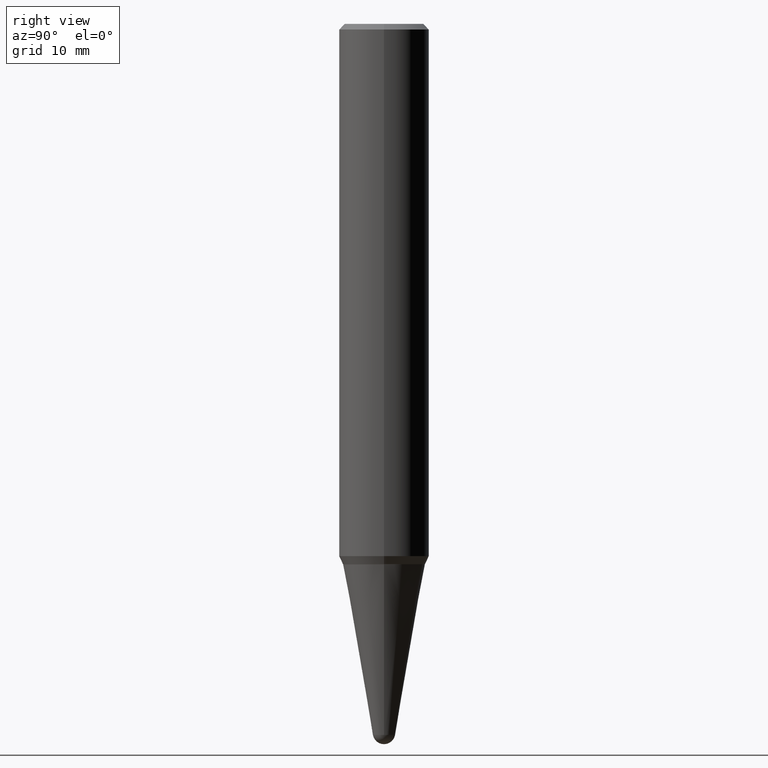
[diagram: clean part render]
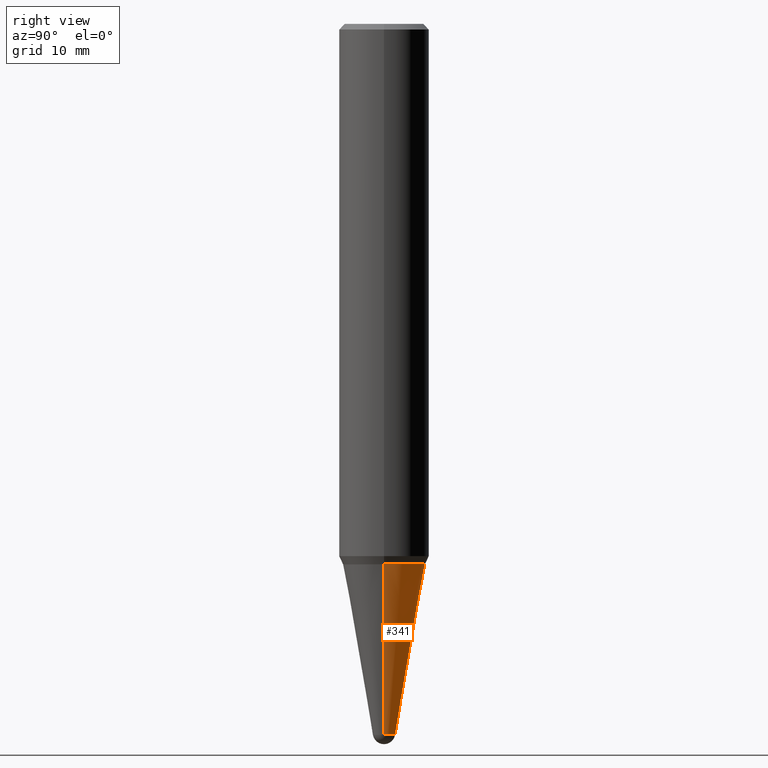
[diagram: same view with one face highlighted and labeled with its STEP entity id]
A machine part, right view. The second image highlights one B-rep face of the part: STEP entity #341.
In plain terms, the highlighted conical surface has half-angle 10 deg.
Its self-contained STEP definition (entity closure, byte-faithful):
#2 = ORIENTED_EDGE ( 'NONE', *, *, #27, .F. ) ;
#27 = EDGE_CURVE ( 'NONE', #265, #43, #39, .T. ) ;
#30 = AXIS2_PLACEMENT_3D ( 'NONE', #391, #40, #422 ) ;
#39 = CIRCLE ( 'NONE', #159, 0.2287707076570457132 ) ;
#40 = DIRECTION ( 'NONE',  ( -2.445468806185136597E-29, 3.491481338843145583E-15, 1.000000000000000000 ) ) ;
#42 = VERTEX_POINT ( 'NONE', #329 ) ;
#43 = VERTEX_POINT ( 'NONE', #429 ) ;
#47 = EDGE_LOOP ( 'NONE', ( #456, #181, #2, #286, #416 ) ) ;
#65 = EDGE_CURVE ( 'NONE', #320, #43, #202, .T. ) ;
#70 = CARTESIAN_POINT ( 'NONE',  ( -0.06155048456326350781, -1.109859436613565477E-14, -3.948353011104182908 ) ) ;
#78 = DIRECTION ( 'NONE',  ( 1.000000000000000000, -6.982962677686263555E-15, 0.000000000000000000 ) ) ;
#110 = DIRECTION ( 'NONE',  ( 1.000000000000000000, -6.982962677686276177E-15, 0.000000000000000000 ) ) ;
#112 = FACE_OUTER_BOUND ( 'NONE', #47, .T. ) ;
#119 = DIRECTION ( 'NONE',  ( 0.1736481776669305255, 2.225859148293764464E-15, 0.9848077530122080203 ) ) ;
#125 = DIRECTION ( 'NONE',  ( -2.445468806185136597E-29, 3.491481338843145583E-15, 1.000000000000000000 ) ) ;
#128 = CIRCLE ( 'NONE', #30, 0.06155048456326350781 ) ;
#154 = CARTESIAN_POINT ( 'NONE',  ( 0.2287707076570457132, -1.207194132984646247E-14, -2.999999999999999556 ) ) ;
#158 = DIRECTION ( 'NONE',  ( -2.445468806185136597E-29, 3.491481338843145583E-15, 1.000000000000000000 ) ) ;
#159 = AXIS2_PLACEMENT_3D ( 'NONE', #437, #125, #78 ) ;
#181 = ORIENTED_EDGE ( 'NONE', *, *, #65, .T. ) ;
#195 = VERTEX_POINT ( 'NONE', #237 ) ;
#202 = LINE ( 'NONE', #369, #278 ) ;
#226 = AXIS2_PLACEMENT_3D ( 'NONE', #363, #306, #303 ) ;
#237 = CARTESIAN_POINT ( 'NONE',  ( 0.06155048456326350781, -1.314367346189031684E-14, -3.948353011104182908 ) ) ;
#255 = VECTOR ( 'NONE', #119, 39.37007874015748143 ) ;
#265 = VERTEX_POINT ( 'NONE', #154 ) ;
#276 = DIRECTION ( 'NONE',  ( -0.1736481776669305255, 4.672282404182341556E-15, 0.9848077530122080203 ) ) ;
#278 = VECTOR ( 'NONE', #276, 39.37007874015748143 ) ;
#286 = ORIENTED_EDGE ( 'NONE', *, *, #436, .F. ) ;
#301 = AXIS2_PLACEMENT_3D ( 'NONE', #357, #158, #110 ) ;
#303 = DIRECTION ( 'NONE',  ( 1.000000000000000000, -6.982962677686276177E-15, 0.000000000000000000 ) ) ;
#306 = DIRECTION ( 'NONE',  ( -2.445468806185136597E-29, 3.491481338843145583E-15, 1.000000000000000000 ) ) ;
#317 = EDGE_CURVE ( 'NONE', #42, #320, #128, .T. ) ;
#320 = VERTEX_POINT ( 'NONE', #70 ) ;
#329 = CARTESIAN_POINT ( 'NONE',  ( 4.298047364988705659E-16, 0.06155048456324976186, -3.948353011104182908 ) ) ;
#341 = ADVANCED_FACE ( 'NONE', ( #112 ), #380, .T. ) ;
#357 = CARTESIAN_POINT ( 'NONE',  ( 9.655574124462436223E-29, -1.378560085743539787E-14, -3.948353011104182908 ) ) ;
#363 = CARTESIAN_POINT ( 'NONE',  ( 9.655574124462436223E-29, -1.378560085743539787E-14, -3.948353011104182908 ) ) ;
#367 = CIRCLE ( 'NONE', #226, 0.06155048456326350781 ) ;
#368 = CARTESIAN_POINT ( 'NONE',  ( 0.06155048456326350781, -1.421540559393417278E-14, -3.948353011104182908 ) ) ;
#369 = CARTESIAN_POINT ( 'NONE',  ( -0.06155048456326350781, -1.334825836054598876E-14, -3.948353011104182908 ) ) ;
#380 = CONICAL_SURFACE ( 'NONE', #301, 0.06155048456326350781, 0.1745329251994331421 ) ;
#391 = CARTESIAN_POINT ( 'NONE',  ( 9.655574124462436223E-29, -1.378560085743539787E-14, -3.948353011104182908 ) ) ;
#394 = EDGE_CURVE ( 'NONE', #195, #42, #367, .T. ) ;
#416 = ORIENTED_EDGE ( 'NONE', *, *, #394, .T. ) ;
#422 = DIRECTION ( 'NONE',  ( 1.000000000000000000, -6.982962677686276177E-15, 0.000000000000000000 ) ) ;
#429 = CARTESIAN_POINT ( 'NONE',  ( -0.2287707076570457132, -8.848930371725322354E-15, -2.999999999999999556 ) ) ;
#436 = EDGE_CURVE ( 'NONE', #195, #265, #439, .T. ) ;
#437 = CARTESIAN_POINT ( 'NONE',  ( 7.336406418555408669E-29, -1.047444401652943478E-14, -2.999999999999999556 ) ) ;
#439 = LINE ( 'NONE', #368, #255 ) ;
#456 = ORIENTED_EDGE ( 'NONE', *, *, #317, .T. ) ;